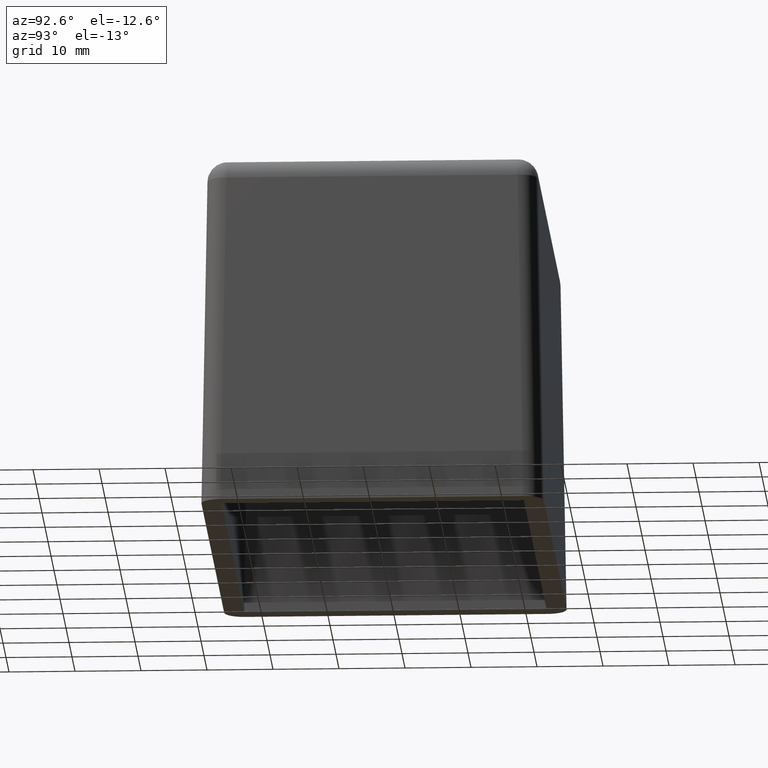
[diagram: clean part render]
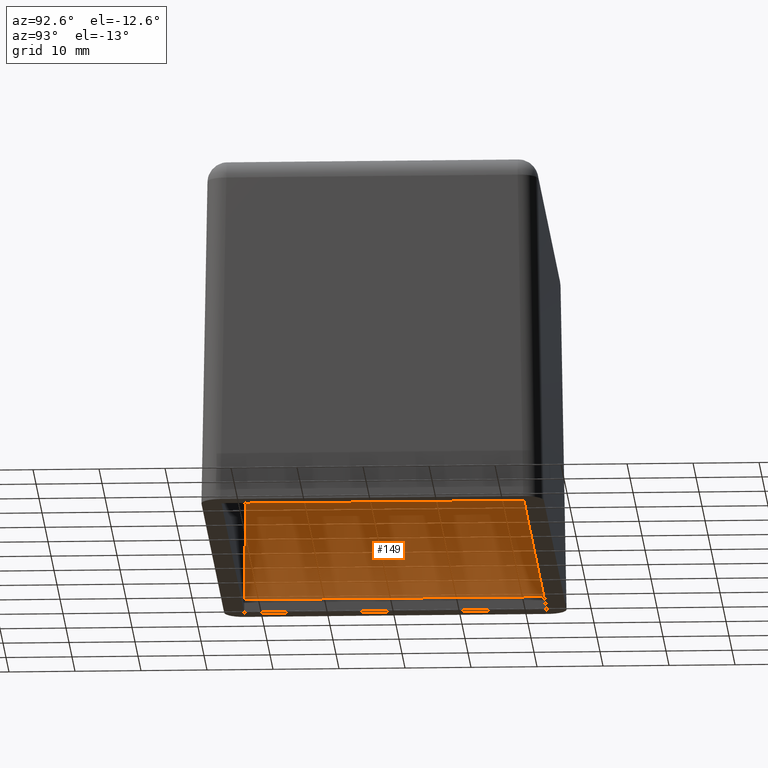
[diagram: same view with one face highlighted and labeled with its STEP entity id]
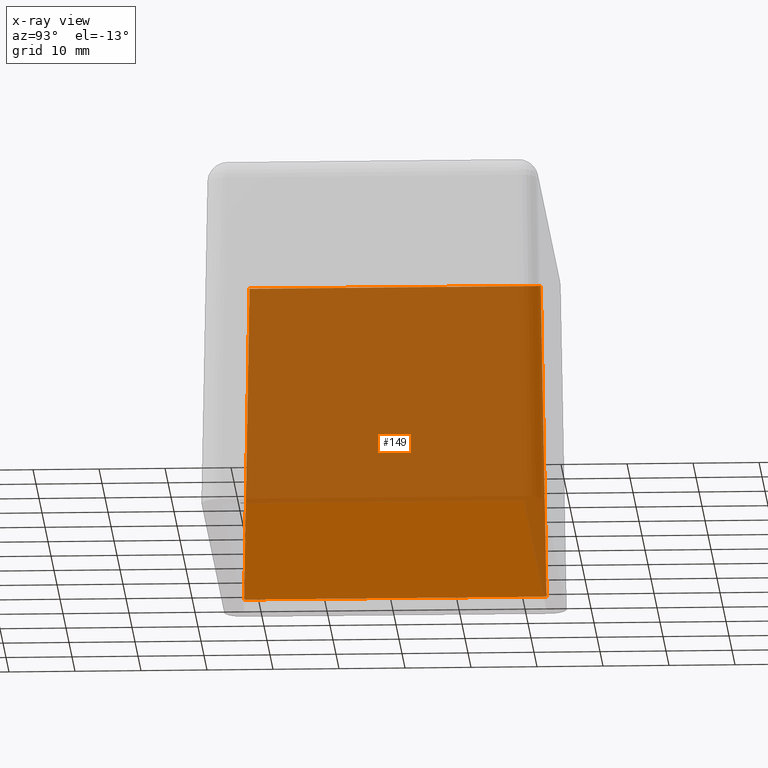
[diagram: x-ray of the same camera — body ghosted, the highlighted face saturated]
A machine part, auxiliary view. The second image highlights one B-rep face of the part: STEP entity #149.
The next image is the same camera in x-ray: the body ghosted, the highlighted face saturated — about 70% of this face is hidden behind the body in this view.
In plain terms, the highlighted planar face has unit normal (-0.9998, 0, 0.0175).
Its self-contained STEP definition (entity closure, byte-faithful):
#149 = ADVANCED_FACE( '', ( #366 ), #367, .F. );
#366 = FACE_OUTER_BOUND( '', #642, .T. );
#367 = PLANE( '', #643 );
#642 = EDGE_LOOP( '', ( #1407, #1408, #1409, #1410 ) );
#643 = AXIS2_PLACEMENT_3D( '', #1411, #1412, #1413 );
#1407 = ORIENTED_EDGE( '', *, *, #2085, .F. );
#1408 = ORIENTED_EDGE( '', *, *, #2080, .T. );
#1409 = ORIENTED_EDGE( '', *, *, #2087, .T. );
#1410 = ORIENTED_EDGE( '', *, *, #2075, .F. );
#1411 = CARTESIAN_POINT( '', ( -37.5000000000000, -22.5000000000000, 25.0000000000000 ) );
#1412 = DIRECTION( '', ( -0.999847695156391, 0.000000000000000, 0.0174524064372835 ) );
#1413 = DIRECTION( '', ( 0.0174524064372835, 0.000000000000000, 0.999847695156391 ) );
#2075 = EDGE_CURVE( '', #2565, #2570, #2571, .F. );
#2080 = EDGE_CURVE( '', #2577, #2578, #2579, .F. );
#2085 = EDGE_CURVE( '', #2577, #2565, #2586, .T. );
#2087 = EDGE_CURVE( '', #2578, #2570, #2588, .T. );
#2565 = VERTEX_POINT( '', #3497 );
#2570 = VERTEX_POINT( '', #3505 );
#2571 = LINE( '', #3506, #3507 );
#2577 = VERTEX_POINT( '', #3517 );
#2578 = VERTEX_POINT( '', #3518 );
#2579 = LINE( '', #3519, #3520 );
#2586 = LINE( '', #3531, #3532 );
#2588 = LINE( '', #3535, #3536 );
#3497 = CARTESIAN_POINT( '', ( -37.9014664933490, 22.9014664933490, 1.99999999999999 ) );
#3505 = CARTESIAN_POINT( '', ( -37.9014664933490, -22.9014664933490, 1.99999999999999 ) );
#3506 = CARTESIAN_POINT( '', ( -37.9014664933490, -22.5000000000000, 1.99999999999999 ) );
#3507 = VECTOR( '', #3902, 1000.00000000000 );
#3517 = CARTESIAN_POINT( '', ( -37.0636233767946, 22.0636233767946, 50.0000000000000 ) );
#3518 = CARTESIAN_POINT( '', ( -37.0636233767946, -22.0636233767946, 50.0000000000000 ) );
#3519 = CARTESIAN_POINT( '', ( -37.0636233767946, -22.5000000000000, 50.0000000000000 ) );
#3520 = VECTOR( '', #3907, 1000.00000000000 );
#3531 = CARTESIAN_POINT( '', ( -37.4862977814403, 22.4862977814403, 25.7849995755405 ) );
#3532 = VECTOR( '', #3912, 1000.00000000000 );
#3535 = CARTESIAN_POINT( '', ( -37.5000000000000, -22.5000000000000, 25.0000000000000 ) );
#3536 = VECTOR( '', #3914, 1000.00000000000 );
#3902 = DIRECTION( '', ( 0.000000000000000, 1.00000000000000, 0.000000000000000 ) );
#3907 = DIRECTION( '', ( 0.000000000000000, 1.00000000000000, 0.000000000000000 ) );
#3912 = DIRECTION( '', ( -0.0174497491606827, 0.0174497491606827, -0.999695459881887 ) );
#3914 = DIRECTION( '', ( -0.0174497491606827, -0.0174497491606827, -0.999695459881887 ) );